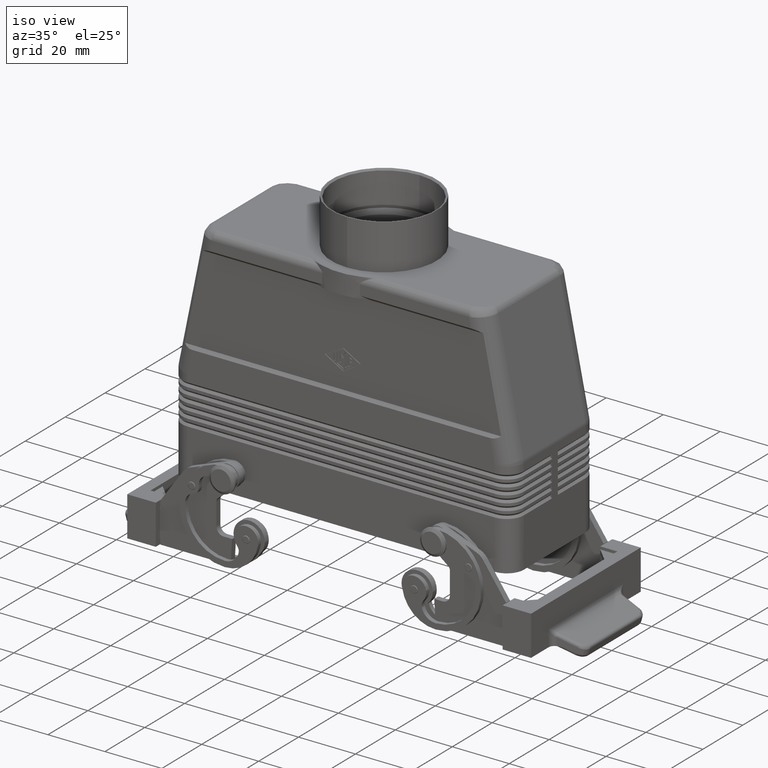
[diagram: clean part render]
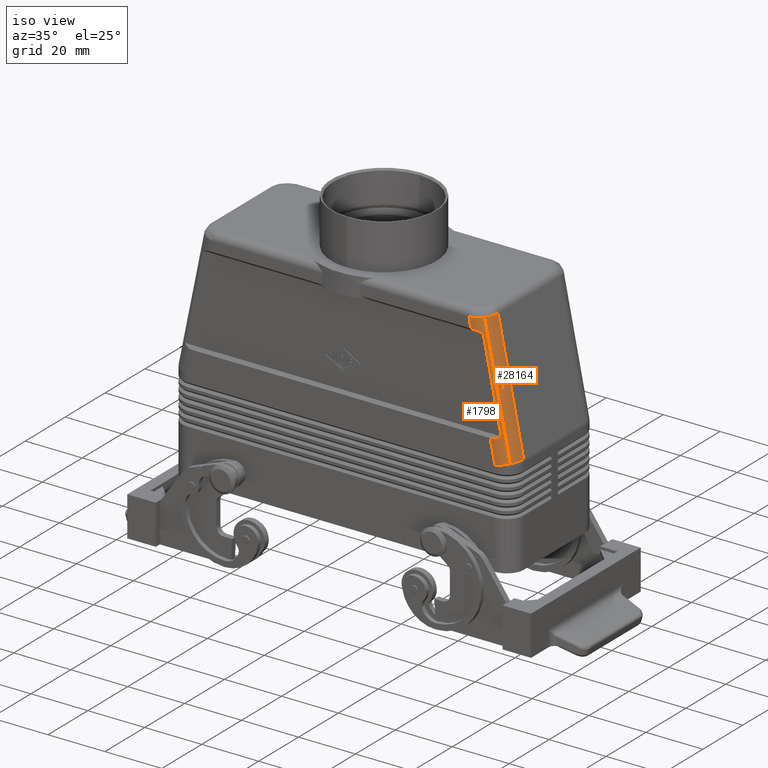
[diagram: same view with one multi-face feature highlighted, each face labeled with its STEP entity id]
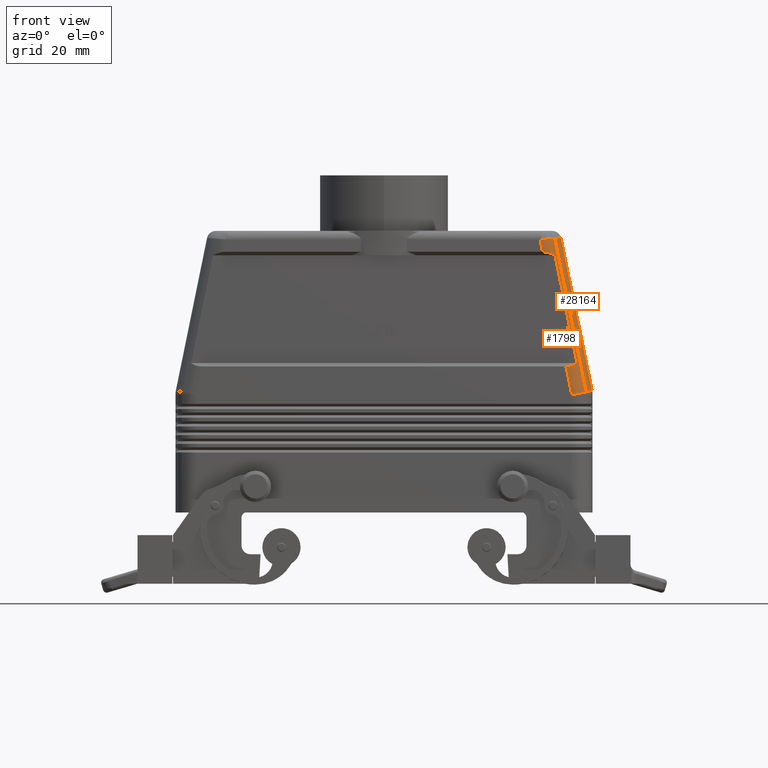
[diagram: same view with one multi-face feature highlighted, each face labeled with its STEP entity id]
A machine part, iso view. The highlighted faces form ONE feature: a constant-radius fillet chain: 2 tangent blend faces with common blend radius 6 mm. The faces share edges in the B-rep.
A second angle (front view) of the same feature is appended — it is thin or edge-on in the first view.
Their STEP definitions:
[1] entity #1798 (Cylinder):
#1723=CARTESIAN_POINT('',(52.518671027244054,-15.499999999999998,41.144077666434526));
#1724=DIRECTION('',(0.200166412454252,0.0,-0.979761913591866));
#1725=DIRECTION('',(0.692796293049117,-0.707106781186547,0.141539027612186));
#1726=AXIS2_PLACEMENT_3D('',#1723,#1724,#1725);
#1727=CYLINDRICAL_SURFACE('',#1726,6.000000000000001);
#1728=CARTESIAN_POINT('',(49.144801699500775,-19.742640687119280,78.853847569030435));
#1729=VERTEX_POINT('',#1728);
#1730=CARTESIAN_POINT('',(58.156777758294702,-19.742640687119280,34.742596333881160));
#1731=VERTEX_POINT('',#1730);
#1732=CARTESIAN_POINT('',(49.144801699500775,-19.742640687119280,78.853847569030435));
#1733=DIRECTION('',(0.200166412454252,0.0,-0.979761913591866));
#1734=VECTOR('',#1733,45.022418837893788);
#1735=LINE('',#1732,#1734);
#1736=EDGE_CURVE('',#1729,#1731,#1735,.T.);
#1737=ORIENTED_EDGE('',*,*,#1736,.F.);
#1738=CARTESIAN_POINT('',(44.886815926838217,-21.500000000000000,78.499999999999972));
#1739=VERTEX_POINT('',#1738);
#1740=CARTESIAN_POINT('',(44.886815926838217,-15.499999999999998,78.499999999999972));
#1741=DIRECTION('',(-0.082816630117557,-2.451865E-016,0.996564802597388));
#1742=DIRECTION('',(0.996564802597388,3.307266E-015,0.082816630117557));
#1743=AXIS2_PLACEMENT_3D('',#1740,#1741,#1742);
#1744=ELLIPSE('',#1743,6.042458265028476,6.000000000000001);
#1745=EDGE_CURVE('',#1739,#1729,#1744,.T.);
#1746=ORIENTED_EDGE('',*,*,#1745,.F.);
#1747=CARTESIAN_POINT('',(45.601869690279074,-21.500000000000000,75.0));
#1748=VERTEX_POINT('',#1747);
#1749=CARTESIAN_POINT('',(44.886815926838217,-21.500000000000000,78.499999999999972));
#1750=DIRECTION('',(0.200166412454253,0.0,-0.979761913591865));
#1751=VECTOR('',#1750,3.572296444111369);
#1752=LINE('',#1749,#1751);
#1753=EDGE_CURVE('',#1739,#1748,#1752,.T.);
#1754=ORIENTED_EDGE('',*,*,#1753,.T.);
#1755=CARTESIAN_POINT('',(49.191304178415969,-20.500000000000004,74.0));
#1756=VERTEX_POINT('',#1755);
#1757=CARTESIAN_POINT('',(46.827676141891985,-15.499999999999998,68.999999999999943));
#1758=DIRECTION('',(2.775558E-017,0.707106781186551,0.707106781186545));
#1759=DIRECTION('',(-0.277571984143553,-0.679320908561853,0.679320908561859));
#1760=AXIS2_PLACEMENT_3D('',#1757,#1758,#1759);
#1761=ELLIPSE('',#1760,8.660554422993501,6.000000000000003);
#1762=EDGE_CURVE('',#1748,#1756,#1761,.T.);
#1763=ORIENTED_EDGE('',*,*,#1762,.T.);
#1764=CARTESIAN_POINT('',(55.524637511749297,-20.500000000000004,42.999999999999986));
#1765=VERTEX_POINT('',#1764);
#1766=CARTESIAN_POINT('',(49.191304178415969,-20.500000000000004,74.0));
#1767=DIRECTION('',(0.200166412454252,0.0,-0.979761913591866));
#1768=VECTOR('',#1767,31.640339933558110);
#1769=LINE('',#1766,#1768);
#1770=EDGE_CURVE('',#1756,#1765,#1769,.T.);
#1771=ORIENTED_EDGE('',*,*,#1770,.T.);
#1772=CARTESIAN_POINT('',(52.343805174150042,-21.500000000000000,41.999999999999993));
#1773=VERTEX_POINT('',#1772);
#1774=CARTESIAN_POINT('',(51.117998722537131,-15.499999999999998,47.999999999999986));
#1775=DIRECTION('',(0.0,0.707106781186547,-0.707106781186547));
#1776=DIRECTION('',(0.277571984143554,-0.679320908561856,-0.679320908561856));
#1777=AXIS2_PLACEMENT_3D('',#1774,#1775,#1776);
#1778=ELLIPSE('',#1777,8.660554422993464,6.000000000000001);
#1779=EDGE_CURVE('',#1765,#1773,#1778,.T.);
#1780=ORIENTED_EDGE('',*,*,#1779,.T.);
#1781=CARTESIAN_POINT('',(54.0,-21.500000000000000,33.893362168208050));
#1782=VERTEX_POINT('',#1781);
#1783=CARTESIAN_POINT('',(52.343805174150042,-21.500000000000000,41.999999999999993));
#1784=DIRECTION('',(0.200166412454251,0.0,-0.979761913591866));
#1785=VECTOR('',#1784,8.274089571488368);
#1786=LINE('',#1783,#1785);
#1787=EDGE_CURVE('',#1773,#1782,#1786,.T.);
#1788=ORIENTED_EDGE('',*,*,#1787,.T.);
#1789=CARTESIAN_POINT('',(54.0,-15.499999999999998,33.893362168208050));
#1790=DIRECTION('',(-0.200166412454252,0.0,0.979761913591866));
#1791=DIRECTION('',(0.0,-1.0,0.0));
#1792=AXIS2_PLACEMENT_3D('',#1789,#1790,#1791);
#1793=CIRCLE('',#1792,6.000000000000001);
#1794=EDGE_CURVE('',#1782,#1731,#1793,.T.);
#1795=ORIENTED_EDGE('',*,*,#1794,.T.);
#1796=EDGE_LOOP('',(#1737,#1746,#1754,#1763,#1771,#1780,#1788,#1795));
#1797=FACE_OUTER_BOUND('',#1796,.T.);
#1798=ADVANCED_FACE('',(#1797),#1727,.T.);
[2] entity #28164 (Cylinder):
#1728=CARTESIAN_POINT('',(49.144801699500775,-19.742640687119280,78.853847569030435));
#1729=VERTEX_POINT('',#1728);
#1730=CARTESIAN_POINT('',(58.156777758294702,-19.742640687119280,34.742596333881160));
#1731=VERTEX_POINT('',#1730);
#1732=CARTESIAN_POINT('',(49.144801699500775,-19.742640687119280,78.853847569030435));
#1733=DIRECTION('',(0.200166412454252,0.0,-0.979761913591866));
#1734=VECTOR('',#1733,45.022418837893788);
#1735=LINE('',#1732,#1734);
#1736=EDGE_CURVE('',#1729,#1731,#1735,.T.);
#1814=CARTESIAN_POINT('',(50.908517154929278,-15.499999999999998,79.000416031135615));
#1815=VERTEX_POINT('',#1814);
#28027=CARTESIAN_POINT('',(59.878571481551212,-15.499999999999998,35.094360642933566));
#28028=VERTEX_POINT('',#28027);
#28052=CARTESIAN_POINT('',(59.878571481551212,-15.499999999999998,35.094360642933566));
#28053=DIRECTION('',(-0.200166412454252,0.0,0.979761913591865));
#28054=VECTOR('',#28053,44.812984439494933);
#28055=LINE('',#28052,#28054);
#28056=EDGE_CURVE('',#28028,#1815,#28055,.T.);
#28134=CARTESIAN_POINT('',(44.886815926838217,-15.499999999999998,78.499999999999972));
#28135=DIRECTION('',(-0.082816630117557,-2.451865E-016,0.996564802597388));
#28136=DIRECTION('',(0.996564802597388,3.307266E-015,0.082816630117557));
#28137=AXIS2_PLACEMENT_3D('',#28134,#28135,#28136);
#28138=ELLIPSE('',#28137,6.042458265028476,6.000000000000001);
#28139=EDGE_CURVE('',#1729,#1815,#28138,.T.);
#28147=CARTESIAN_POINT('',(52.518671027244054,-15.499999999999998,41.144077666434526));
#28148=DIRECTION('',(0.200166412454252,0.0,-0.979761913591866));
#28149=DIRECTION('',(0.692796293049117,-0.707106781186547,0.141539027612186));
#28150=AXIS2_PLACEMENT_3D('',#28147,#28148,#28149);
#28151=CYLINDRICAL_SURFACE('',#28150,6.000000000000001);
#28152=ORIENTED_EDGE('',*,*,#1736,.T.);
#28153=CARTESIAN_POINT('',(54.0,-15.499999999999998,33.893362168208050));
#28154=DIRECTION('',(-0.200166412454252,0.0,0.979761913591866));
#28155=DIRECTION('',(0.0,-1.0,0.0));
#28156=AXIS2_PLACEMENT_3D('',#28153,#28154,#28155);
#28157=CIRCLE('',#28156,6.000000000000001);
#28158=EDGE_CURVE('',#1731,#28028,#28157,.T.);
#28159=ORIENTED_EDGE('',*,*,#28158,.T.);
#28160=ORIENTED_EDGE('',*,*,#28056,.T.);
#28161=ORIENTED_EDGE('',*,*,#28139,.F.);
#28162=EDGE_LOOP('',(#28152,#28159,#28160,#28161));
#28163=FACE_OUTER_BOUND('',#28162,.T.);
#28164=ADVANCED_FACE('',(#28163),#28151,.T.);